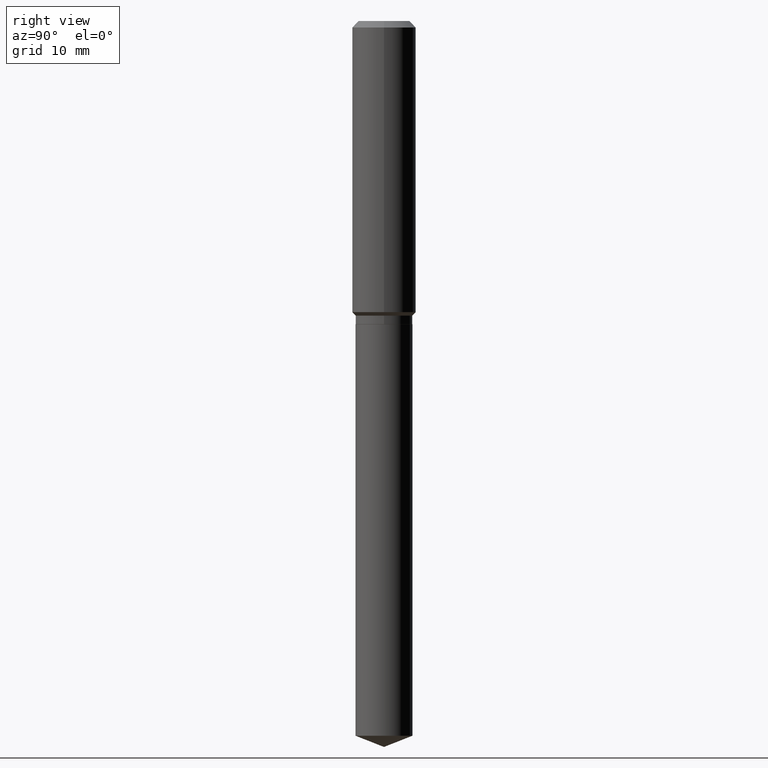
[diagram: clean part render]
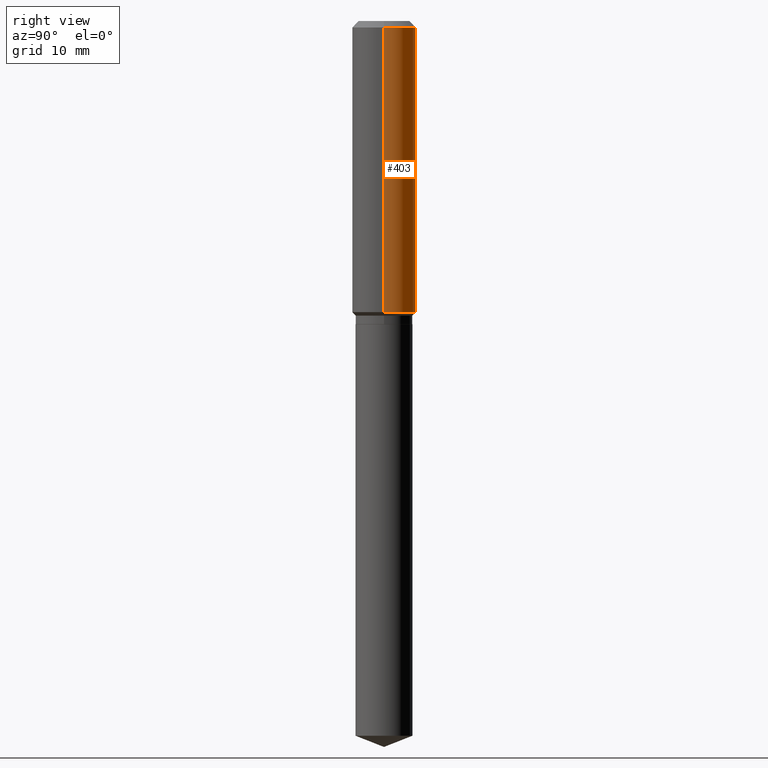
[diagram: same view with one face highlighted and labeled with its STEP entity id]
A machine part, right view. The second image highlights one B-rep face of the part: STEP entity #403.
In plain terms, the highlighted cylindrical surface (edge-blend (fillet) strip) has radius 4.0005 mm, axis along (-0, 0, 1).
Its self-contained STEP definition (entity closure, byte-faithful):
#15 = AXIS2_PLACEMENT_3D ( 'NONE', #169, #92, #434 ) ;
#18 = DIRECTION ( 'NONE',  ( -2.445468806185136877E-29, 3.491481338843145188E-15, 1.000000000000000000 ) ) ;
#33 = VERTEX_POINT ( 'NONE', #131 ) ;
#72 = AXIS2_PLACEMENT_3D ( 'NONE', #404, #370, #453 ) ;
#77 = ORIENTED_EDGE ( 'NONE', *, *, #360, .T. ) ;
#89 = VECTOR ( 'NONE', #18, 39.37007874015748143 ) ;
#92 = DIRECTION ( 'NONE',  ( -2.445468806185136597E-29, 3.491481338843145583E-15, 1.000000000000000000 ) ) ;
#131 = CARTESIAN_POINT ( 'NONE',  ( -0.1575000000000000011, -1.444340790156479211E-15, -0.03150000000000019451 ) ) ;
#148 = DIRECTION ( 'NONE',  ( 1.000000000000000000, -6.982962677686267499E-15, 0.000000000000000000 ) ) ;
#158 = EDGE_LOOP ( 'NONE', ( #231, #77, #239, #374 ) ) ;
#161 = VECTOR ( 'NONE', #226, 39.37007874015748143 ) ;
#169 = CARTESIAN_POINT ( 'NONE',  ( 0.000000000000000000, 0.000000000000000000, 0.000000000000000000 ) ) ;
#173 = EDGE_CURVE ( 'NONE', #235, #435, #353, .T. ) ;
#184 = EDGE_CURVE ( 'NONE', #235, #433, #465, .T. ) ;
#226 = DIRECTION ( 'NONE',  ( -2.445468806185136877E-29, 3.491481338843145188E-15, 1.000000000000000000 ) ) ;
#231 = ORIENTED_EDGE ( 'NONE', *, *, #173, .T. ) ;
#235 = VERTEX_POINT ( 'NONE', #341 ) ;
#239 = ORIENTED_EDGE ( 'NONE', *, *, #485, .F. ) ;
#262 = CARTESIAN_POINT ( 'NONE',  ( 0.1575000000000000844, -1.099816621735587677E-15, 7.679978421878603638E-30 ) ) ;
#278 = CARTESIAN_POINT ( 'NONE',  ( 0.1575000000000000011, -1.209798283909146741E-15, -0.03150000000000019451 ) ) ;
#285 = CIRCLE ( 'NONE', #72, 0.1575000000000000011 ) ;
#305 = CARTESIAN_POINT ( 'NONE',  ( 3.513894127607422832E-29, -5.016909535783715749E-15, -1.436899999999999844 ) ) ;
#315 = CYLINDRICAL_SURFACE ( 'NONE', #15, 0.1575000000000000844 ) ;
#321 = LINE ( 'NONE', #357, #89 ) ;
#341 = CARTESIAN_POINT ( 'NONE',  ( 0.1575000000000001676, -6.116726157519303229E-15, -1.436899999999999844 ) ) ;
#350 = FACE_OUTER_BOUND ( 'NONE', #158, .T. ) ;
#353 = CIRCLE ( 'NONE', #393, 0.1575000000000001676 ) ;
#357 = CARTESIAN_POINT ( 'NONE',  ( -0.1575000000000000844, 1.119104808822158392E-15, -7.747322767151481189E-30 ) ) ;
#360 = EDGE_CURVE ( 'NONE', #435, #33, #321, .T. ) ;
#370 = DIRECTION ( 'NONE',  ( -2.445468806185136597E-29, 3.491481338843145583E-15, 1.000000000000000000 ) ) ;
#374 = ORIENTED_EDGE ( 'NONE', *, *, #184, .F. ) ;
#389 = DIRECTION ( 'NONE',  ( -2.445468806185136597E-29, 3.491481338843145583E-15, 1.000000000000000000 ) ) ;
#393 = AXIS2_PLACEMENT_3D ( 'NONE', #305, #389, #148 ) ;
#398 = CARTESIAN_POINT ( 'NONE',  ( -0.1575000000000001676, -3.897804726961556568E-15, -1.436899999999999844 ) ) ;
#403 = ADVANCED_FACE ( 'NONE', ( #350 ), #315, .T. ) ;
#404 = CARTESIAN_POINT ( 'NONE',  ( 7.703226739483228723E-31, -1.099816621735597661E-16, -0.03150000000000019451 ) ) ;
#433 = VERTEX_POINT ( 'NONE', #278 ) ;
#434 = DIRECTION ( 'NONE',  ( 1.000000000000000000, -6.982962677686267499E-15, 4.876176775795936353E-29 ) ) ;
#435 = VERTEX_POINT ( 'NONE', #398 ) ;
#453 = DIRECTION ( 'NONE',  ( 1.000000000000000000, -6.982962677686265922E-15, 0.000000000000000000 ) ) ;
#465 = LINE ( 'NONE', #262, #161 ) ;
#485 = EDGE_CURVE ( 'NONE', #433, #33, #285, .T. ) ;